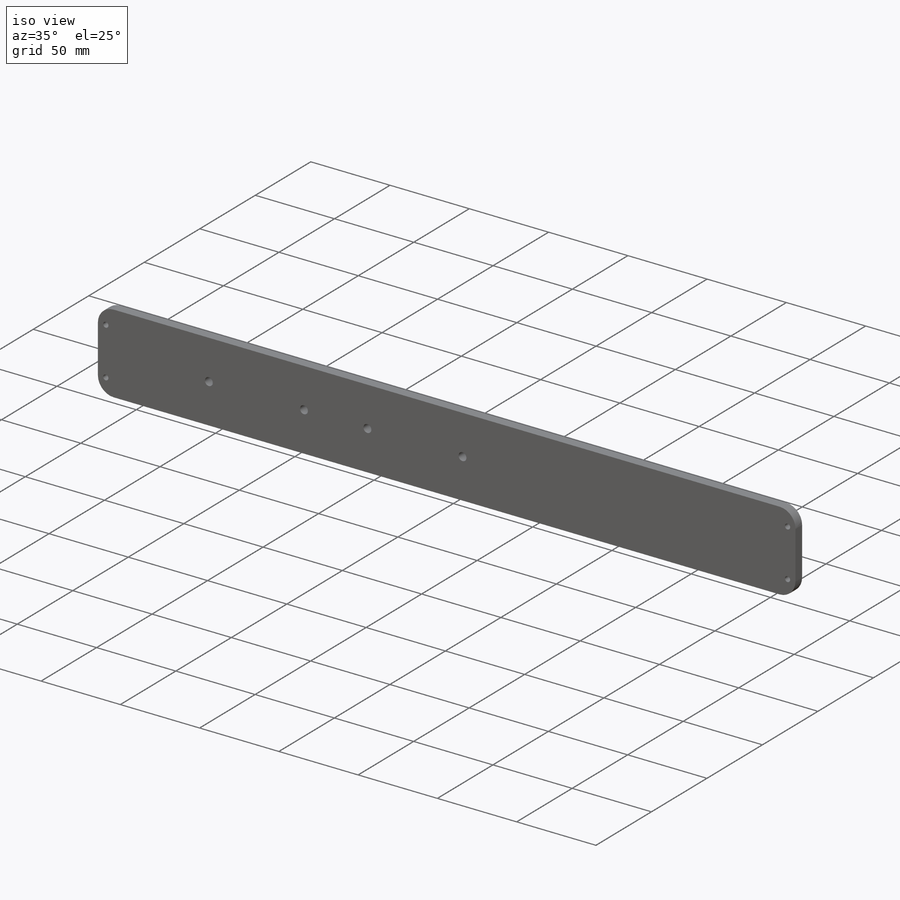
[diagram: iso view]
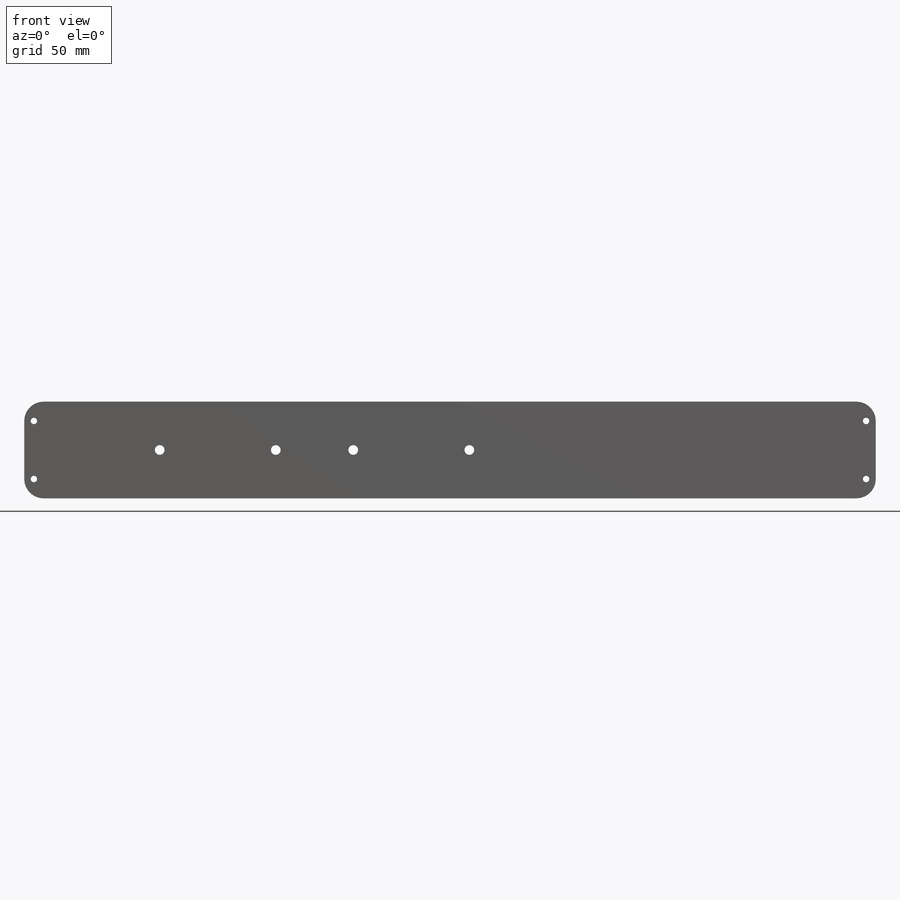
[diagram: front view]
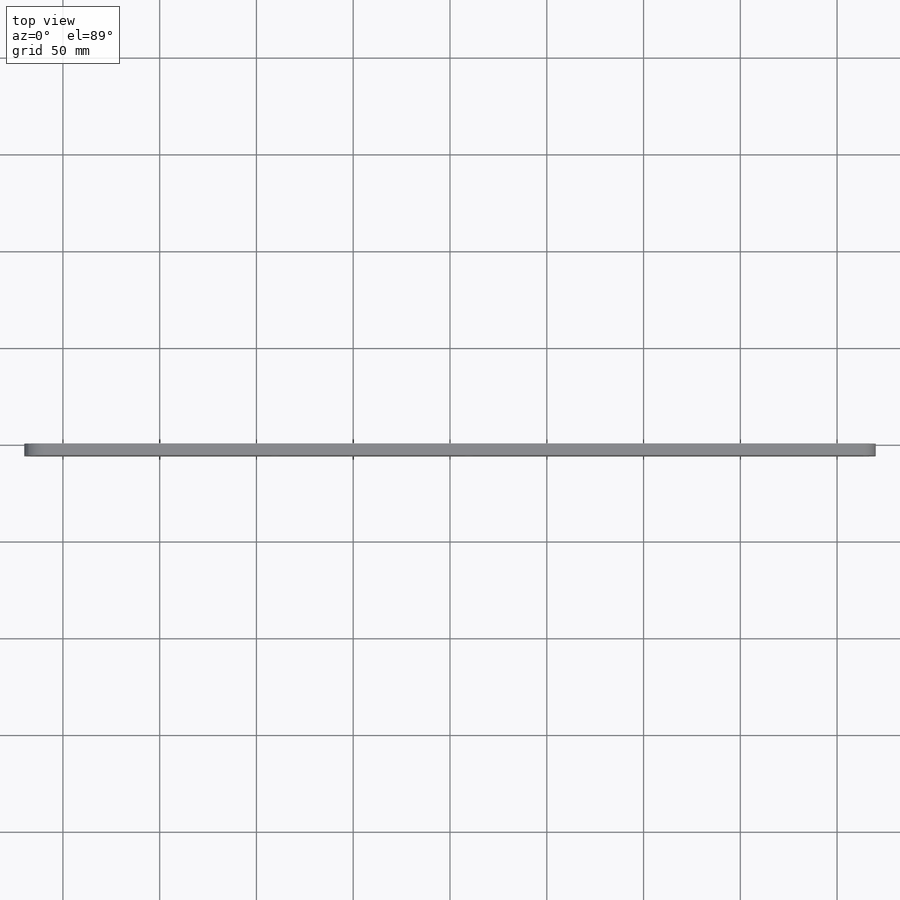
[diagram: top view]
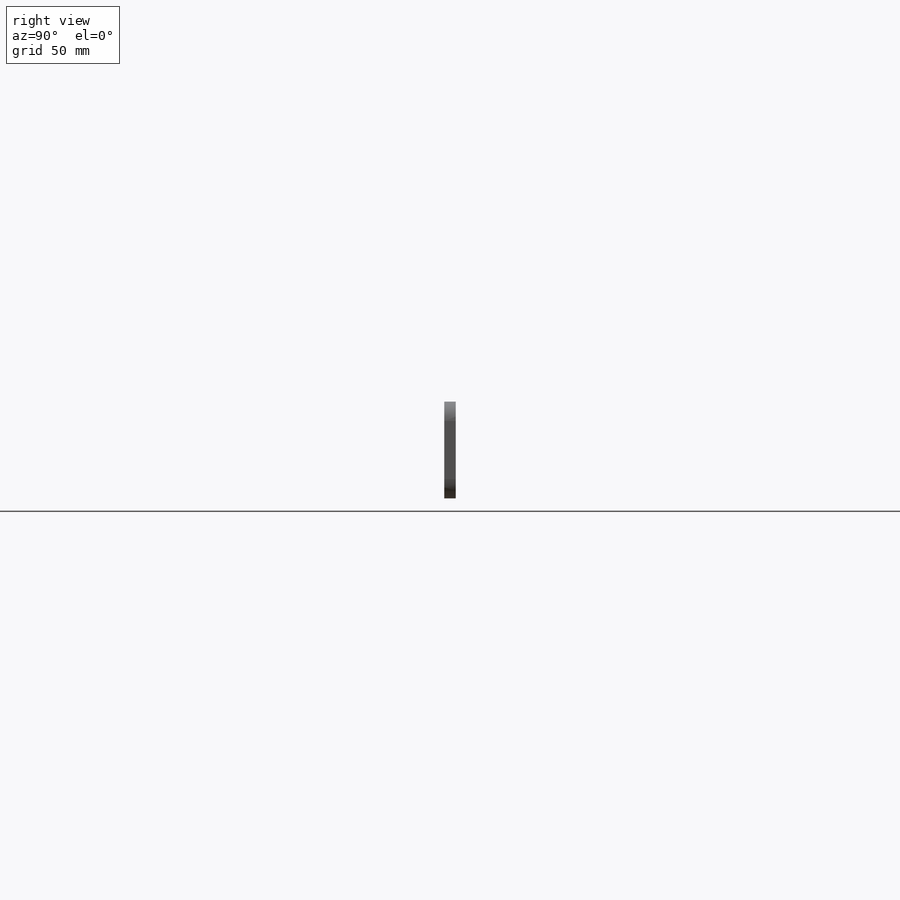
[diagram: right view]
SOLIDWORKS PART (.sldprt)
format: sldprt  version: not decoded by parser v0  size: 225,280 bytes
history: native  units: mm
features: sketch x6, plane x3, hole x2, material x1, extrude x1, cut_extrude x1 (+8 scaffold rows collapsed)
feature tree (22):
  scaffold x8  (default folders/planes/origin — collapsed)
  material  "Matériau <non spécifié>"
  plane  "Plan de face"
  plane  "Plan de dessus"
  plane  "Plan de droite"
  sketch  "Esquisse1"  dims[D3=10.0mm D1=440.0mm D2=50.0mm]
  extrude  "Boss.-Extru.1"  Depth=6mm
  sketch  "Esquisse2"  dims[D5=3.3mm D10=5.0mm D1=5.0mm D2=30.0mm D3=30.0mm D4=5.0mm D6=70.0mm D7=60.0mm D8=170.0mm D9=60.0mm]
  cut_extrude  "Enlèv. mat.-Extru.1"  Depth=6mm
  hole  "Trou pour taraudage pour trou taraudé M6x1.01"  Diameter=5mm Depth=15mm
  sketch  "Esquisse3D1"
  sketch  "Esquisse3"  dims[hole-wizard template sketch: 47 standard entries collapsed; hole parameters kept: c15.Profondeur du perçage=15.0mm c15.D3=~14.816244mm c15.Angle de pointe=118.0deg]
  hole  "Trou pour taraudage pour trou taraudé M4x0.71"  Diameter=3.3mm Depth=15mm
  sketch  "Esquisse3D2"
  sketch  "Esquisse4"  dims[hole-wizard template sketch: 46 standard entries collapsed; hole parameters kept: c15.Diamètre du perçage=3.3mm c15.Profondeur du perçage=15.0mm c15.D3=~14.816244mm c15.Angle de pointe=118.0deg]
decode coverage: 8 of 10 modeling features carry decoded parameters
note: ~ marks probable driven/reference dimensions
note: suppression state not decoded; provenance and decode notes live in map.json
